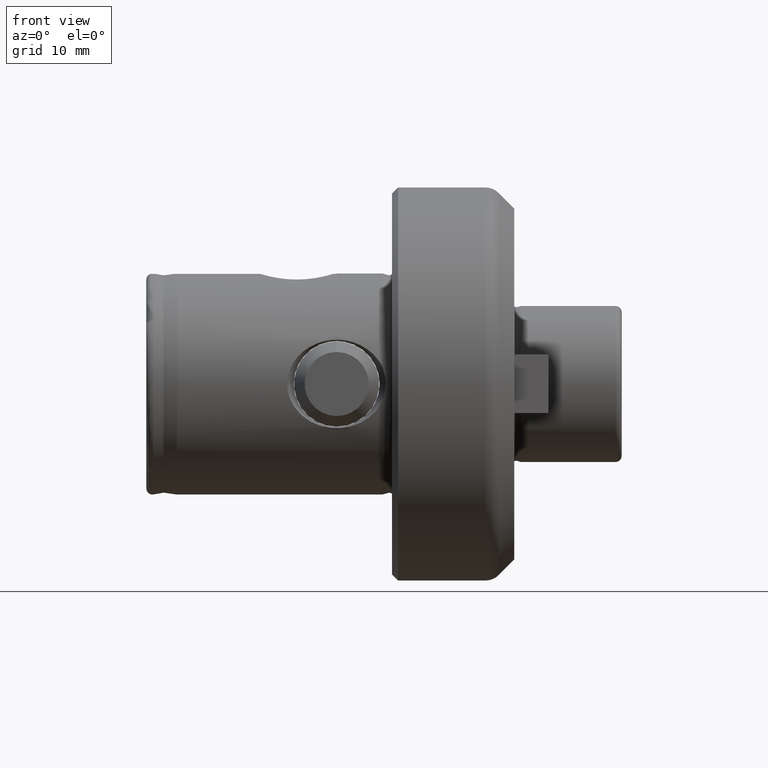
[diagram: clean part render]
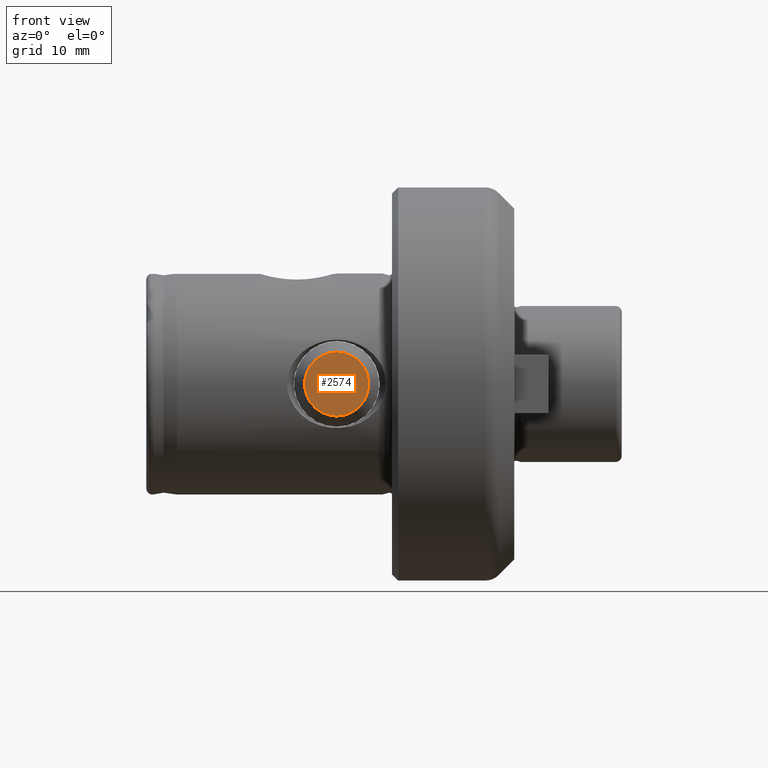
[diagram: same view with one face highlighted and labeled with its STEP entity id]
A machine part, front view. The second image highlights one B-rep face of the part: STEP entity #2574.
In plain terms, the highlighted planar face has unit normal (-0, -1, 0).
Its self-contained STEP definition (entity closure, byte-faithful):
#20 = CARTESIAN_POINT ( 'NONE',  ( 43.00000000000000000, 7.450720015349195300E-016, -5.217949192431120800 ) ) ;
#97 = CARTESIAN_POINT ( 'NONE',  ( 43.00000000000000000, 0.0000000000000000000, 5.217949192431120800 ) ) ;
#143 = CIRCLE ( 'NONE', #261, 5.217949192431120800 ) ;
#261 = AXIS2_PLACEMENT_3D ( 'NONE', #3920, #3921, #3922 ) ;
#1197 = CIRCLE ( 'NONE', #1199, 5.217949192431120800 ) ;
#1199 = AXIS2_PLACEMENT_3D ( 'NONE', #2155, #2156, #2157 ) ;
#1525 = VERTEX_POINT ( 'NONE', #20 ) ;
#1528 = VERTEX_POINT ( 'NONE', #97 ) ;
#2129 = EDGE_CURVE ( 'NONE', #1525, #1528, #143, .T. ) ;
#2155 = CARTESIAN_POINT ( 'NONE',  ( 43.00000000000000000, 0.0000000000000000000, 0.0000000000000000000 ) ) ;
#2156 = DIRECTION ( 'NONE',  ( 1.000000000000000000, 0.0000000000000000000, 0.0000000000000000000 ) ) ;
#2157 = DIRECTION ( 'NONE',  ( 0.0000000000000000000, 0.0000000000000000000, -1.000000000000000000 ) ) ;
#2574 = ADVANCED_FACE ( 'NONE', ( #4127 ), #4128, .T. ) ;
#2618 = EDGE_CURVE ( 'NONE', #1528, #1525, #1197, .T. ) ;
#2642 = AXIS2_PLACEMENT_3D ( 'NONE', #4109, #4131, #4132 ) ;
#2850 = EDGE_LOOP ( 'NONE', ( #3686, #3685 ) ) ;
#3685 = ORIENTED_EDGE ( 'NONE', *, *, #2129, .T. ) ;
#3686 = ORIENTED_EDGE ( 'NONE', *, *, #2618, .T. ) ;
#3920 = CARTESIAN_POINT ( 'NONE',  ( 43.00000000000000000, 0.0000000000000000000, 0.0000000000000000000 ) ) ;
#3921 = DIRECTION ( 'NONE',  ( 1.000000000000000000, 0.0000000000000000000, 0.0000000000000000000 ) ) ;
#3922 = DIRECTION ( 'NONE',  ( 0.0000000000000000000, 0.0000000000000000000, -1.000000000000000000 ) ) ;
#4109 = CARTESIAN_POINT ( 'NONE',  ( 43.00000000000000000, 0.0000000000000000000, 0.0000000000000000000 ) ) ;
#4127 = FACE_OUTER_BOUND ( 'NONE', #2850, .T. ) ;
#4128 = PLANE ( 'NONE',  #2642 ) ;
#4131 = DIRECTION ( 'NONE',  ( 1.000000000000000000, 0.0000000000000000000, 0.0000000000000000000 ) ) ;
#4132 = DIRECTION ( 'NONE',  ( 0.0000000000000000000, 0.0000000000000000000, -1.000000000000000000 ) ) ;